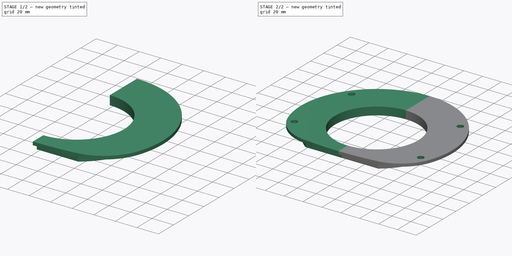
[diagram: build sequence overview — one tinted view per stage of 2, left to right]
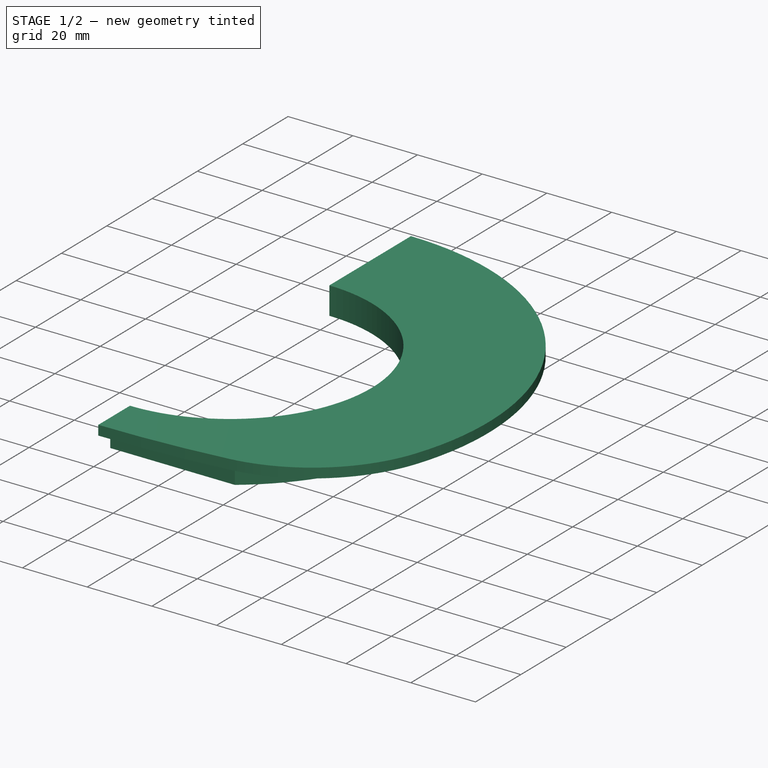
[diagram: stage 1 of 2 — iso view after this stage's code; geometry added in this stage tinted green]
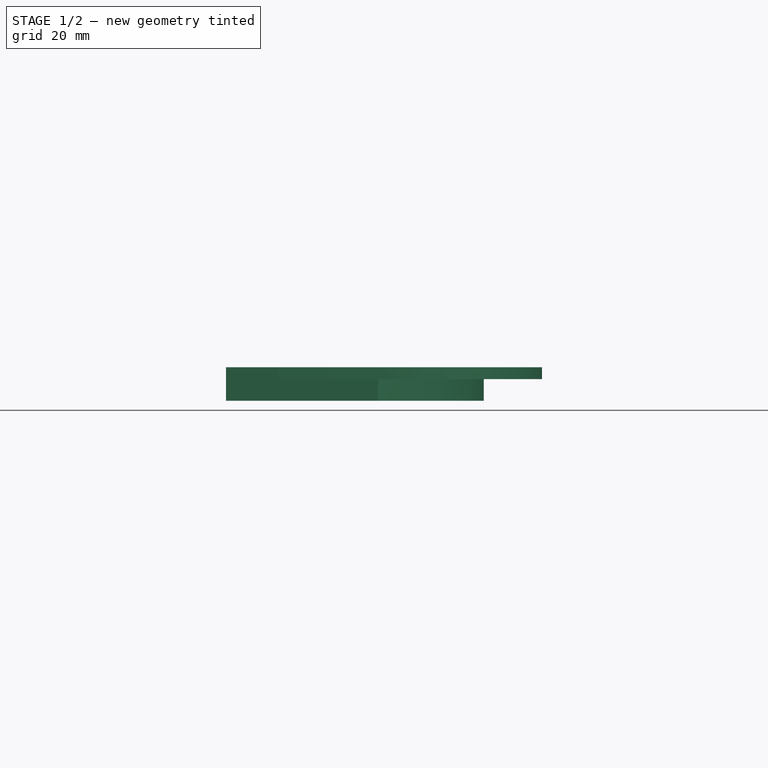
[diagram: stage 1 of 2 — front view after this stage's code; geometry added in this stage tinted green]
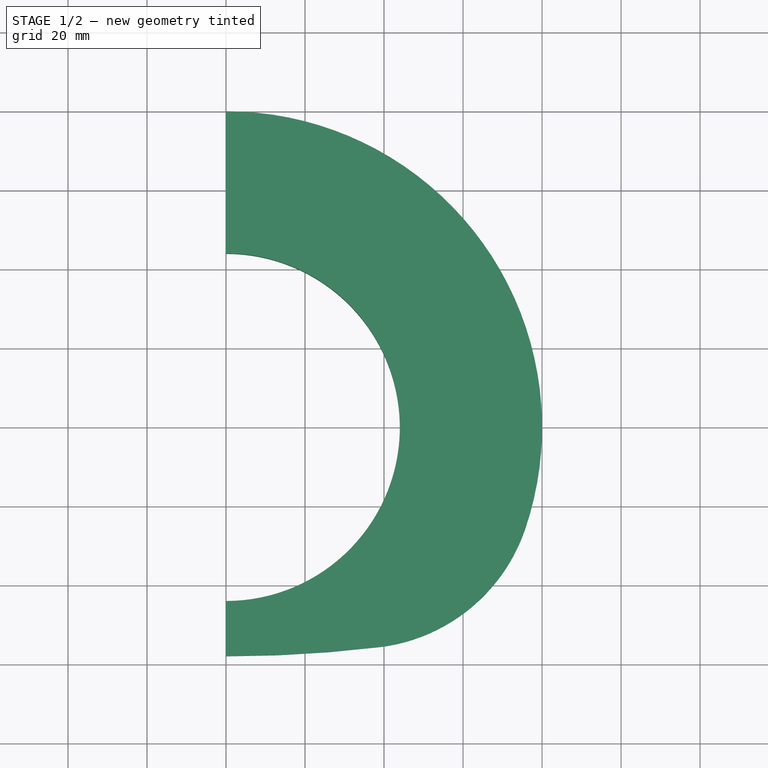
[diagram: stage 1 of 2 — top view after this stage's code; geometry added in this stage tinted green]
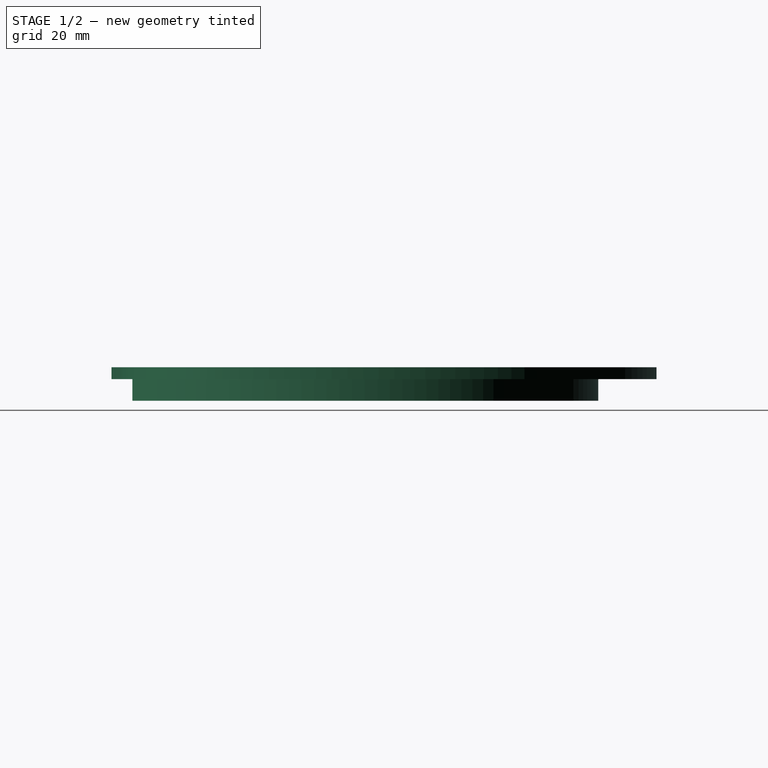
[diagram: stage 1 of 2 — right view after this stage's code; geometry added in this stage tinted green]
FCSTD DOCUMENT  (FreeCAD 0.19R24291 (Git))
Label: Посадочное место
License: All rights reserved
LicenseURL: http://en.wikipedia.org/wiki/All_rights_reserved
objects: Sketcher::SketchObject×3, PartDesign::Pad×2, PartDesign::Mirrored×1, PartDesign::Pocket×1, PartDesign::Body×1
note: 11 computed .brp shape members not serialized (recipe doc carries the construction recipe); baked Part::Feature solids carry a one-line shape summary decoded from their .brp

FEATURE [Sketcher::SketchObject] Sketch
  FullyConstrained = true
  MapMode = 5
  Support = -> [XY_Plane]
  sketch-geometry (9):
    g0: ArcOfCircle CenterX=0 CenterY=0 CenterZ=0 NormalX=0 NormalY=0 NormalZ=1 AngleXU=0 Radius=44 StartAngle=4.71239 EndAngle=7.85398
    g1: ArcOfCircle CenterX=0 CenterY=268.397 CenterZ=0 NormalX=0 NormalY=0 NormalZ=1 AngleXU=0 Radius=326.378 StartAngle=4.71239 EndAngle=4.83173
    g2: ArcOfCircle CenterX=0 CenterY=0 CenterZ=0 NormalX=0 NormalY=0 NormalZ=1 AngleXU=0 Radius=80 StartAngle=5.95515 EndAngle=7.85398
    g3: LineSegment StartX=2.45e-14 StartY=80 StartZ=0 EndX=1.35e-14 EndY=44 EndZ=0
    g4: LineSegment StartX=0 StartY=-57.9812 StartZ=0 EndX=-8.1e-15 EndY=-44 EndZ=0
    g5: ArcOfCircle CenterX=0 CenterY=0 CenterZ=0 NormalX=0 NormalY=0 NormalZ=1 AngleXU=0 Radius=65.25 StartAngle=5.3435 EndAngle=7.85398
    g6: LineSegment StartX=38.5 StartY=-52.6812 StartZ=0 EndX=0 EndY=-52.6812 EndZ=0
    g7: LineSegment StartX=38.5 StartY=-52.6812 StartZ=0 EndX=38.8572 EndY=-55.6599 EndZ=0
    g8: ArcOfCircle CenterX=33.5523 CenterY=-11.4191 CenterZ=0 NormalX=0 NormalY=0 NormalZ=1 AngleXU=0 Radius=44.5578 StartAngle=4.83173 EndAngle=5.95515
  constraints (29):
    c: Coincident(g0,g-1)
    c: PointOnObject(g0,g-2)
    c: PointOnObject(g0,g-2)
    c: Diameter(g0) = 88
    c: PointOnObject(g1,g-2)
    c: PointOnObject(g1,g-2)
    c: Coincident(g2,g0)
    c: PointOnObject(g2,g-2)
    c: Diameter(g2) = 160
    c: Coincident(g3,g2)
    c: Coincident(g3,g0)
    c: Coincident(g4,g1)
    c: Coincident(g4,g0)
    c: Coincident(g5,g0)
    c: PointOnObject(g5,g3)
    c: Diameter(g5) = 130.5
    c: Coincident(g6,g5)
    c: PointOnObject(g6,g4)
    c: Horizontal(g6)
    c: Distance(g6) = 38.5
    c: Distance(g1,g5) = 3
    c: Coincident(g7,g5)
    c: Coincident(g7,g1)
    c: Perpendicular(g1,g7)
    c: Coincident(g8,g1)
    c: Coincident(g8,g2)
    c: Tangent(g1,g8)
    c: Tangent(g8,g2)
    c: Distance(g1,g6) = 5.3
FEATURE [PartDesign::Pad] Pad
  Direction = (1,1,1)
  Length = 3
  Length2 = 100
  Profile = -> Sketch
  Type = 0
FEATURE [Sketcher::SketchObject] Sketch001
  ExternalGeometry = -> [Pad]
  FullyConstrained = true
  MapMode = 5
  Placement = pos=(0,0,0) rot=(1,0,0;3.14159rad)
  Support = -> [Pad]
  sketch-geometry (5):
    g0: ArcOfCircle CenterX=0 CenterY=0 CenterZ=0 NormalX=0 NormalY=0 NormalZ=1 AngleXU=0 Radius=65.25 StartAngle=4.71239 EndAngle=7.22288
    g1: LineSegment StartX=38.5 StartY=52.6812 StartZ=0 EndX=0 EndY=52.6812 EndZ=0
    g2: ArcOfCircle CenterX=0 CenterY=0 CenterZ=0 NormalX=0 NormalY=0 NormalZ=1 AngleXU=0 Radius=44 StartAngle=4.71239 EndAngle=7.85398
    g3: LineSegment StartX=-2.56e-14 StartY=44 StartZ=0 EndX=0 EndY=52.6812 EndZ=0
    g4: LineSegment StartX=3.1e-14 StartY=-44 StartZ=0 EndX=-1.2e-14 EndY=-65.25 EndZ=0
  constraints (14):
    c: Coincident(g0,g-1)
    c: PointOnObject(g0,g-2)
    c: Coincident(g1,g0)
    c: PointOnObject(g1,g-2)
    c: Horizontal(g1)
    c: Coincident(g2,g0)
    c: Coincident(g2,g-3)
    c: Coincident(g2,g-3)
    c: Coincident(g3,g2)
    c: Coincident(g3,g1)
    c: Coincident(g4,g2)
    c: Coincident(g4,g0)
    c: Diameter(g0) = 130.5
    c: Distance(g1) = 38.5
FEATURE [PartDesign::Pad] Pad001
  BaseFeature = -> Pad
  Direction = (1,1,1)
  Length = 5.5
  Length2 = 100
  Profile = -> Sketch001
  Type = 0
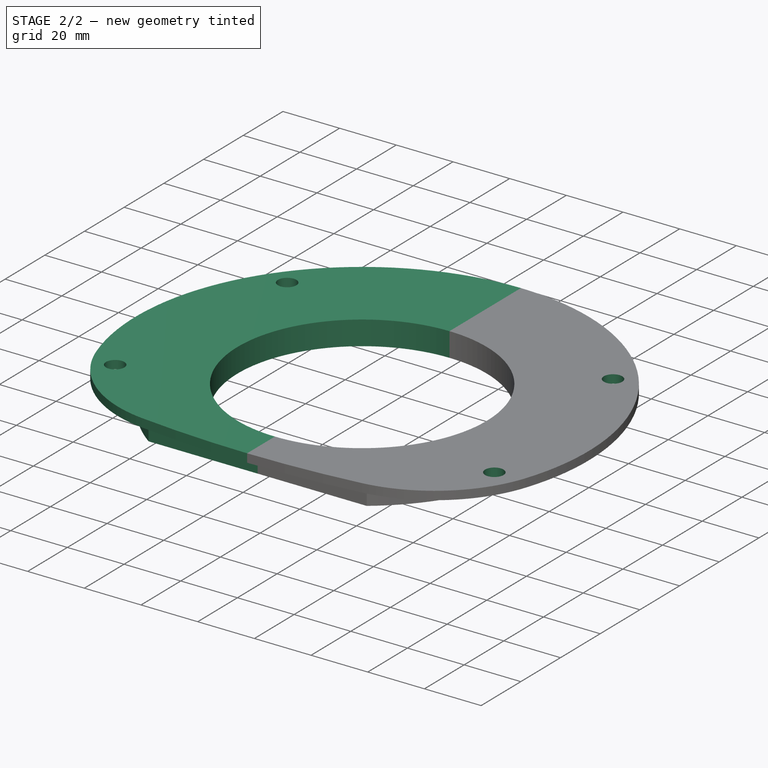
[diagram: stage 2 of 2 — iso view after this stage's code; geometry added in this stage tinted green]
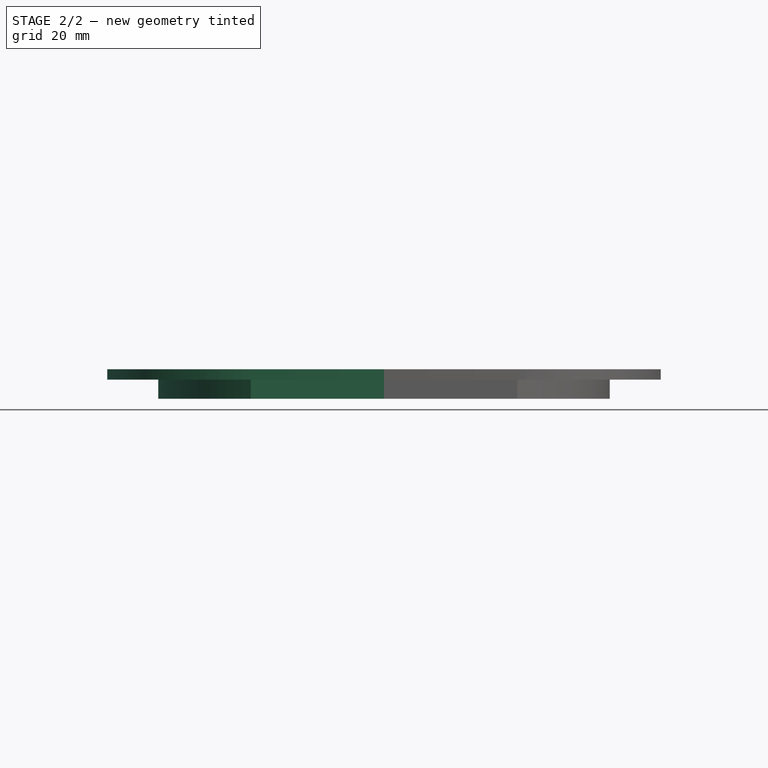
[diagram: stage 2 of 2 — front view after this stage's code; geometry added in this stage tinted green]
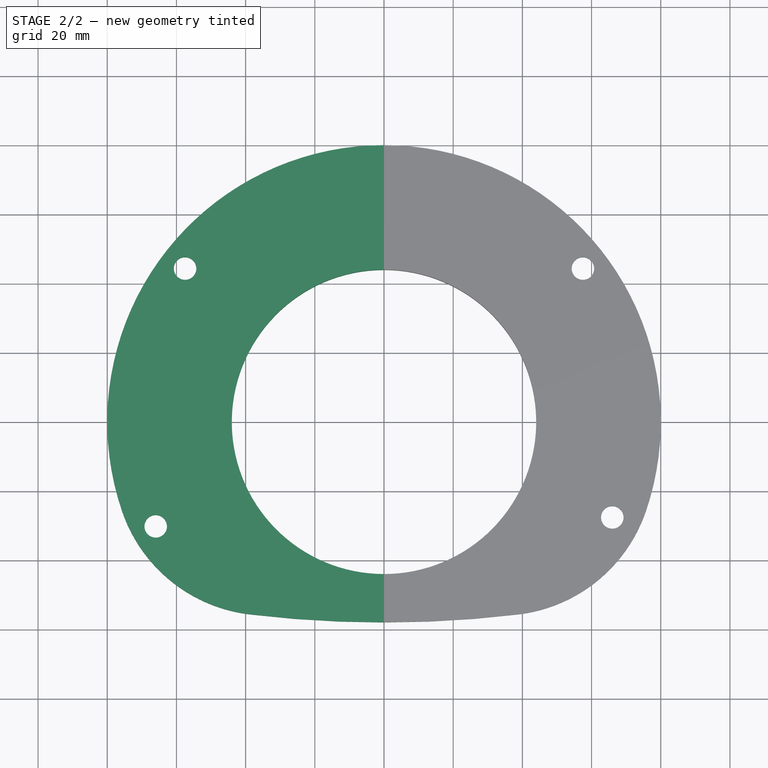
[diagram: stage 2 of 2 — top view after this stage's code; geometry added in this stage tinted green]
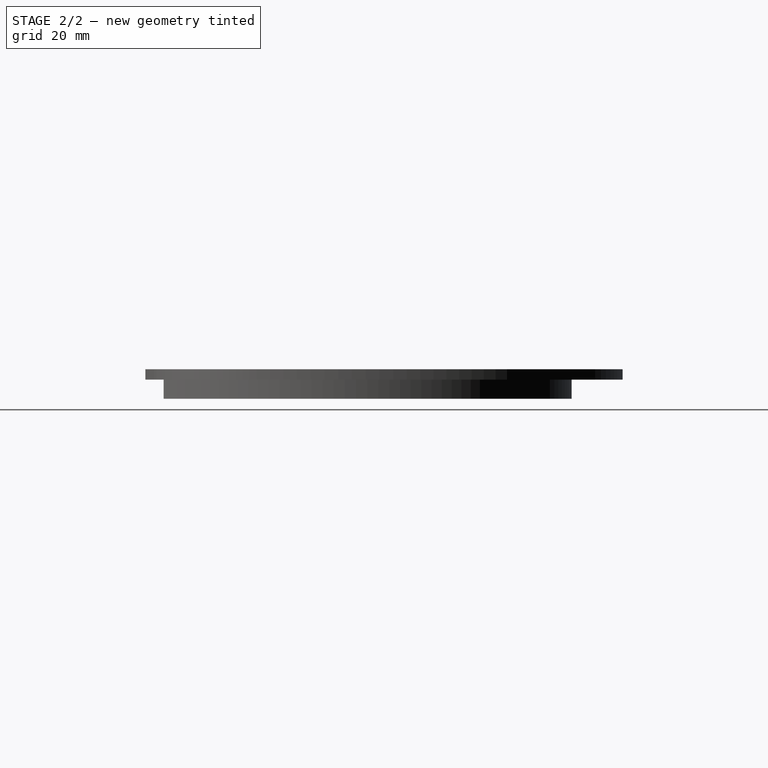
[diagram: stage 2 of 2 — right view after this stage's code; geometry added in this stage tinted green]
FEATURE [PartDesign::Mirrored] Mirrored
  BaseFeature = -> Pad001
  MirrorPlane = -> Sketch [V_Axis]
  Originals = -> [Pad,Pad001]
FEATURE [Sketcher::SketchObject] Sketch002
  ExternalGeometry = -> [Mirrored]
  FullyConstrained = true
  MapMode = 5
  Placement = pos=(0,0,0) rot=(1,0,0;3.14159rad)
  Support = -> [Mirrored]
  sketch-geometry (8):
    g0: Circle CenterX=65.9873 CenterY=27.6281 CenterZ=0 NormalX=0 NormalY=0 NormalZ=1 AngleXU=0 Radius=3.25
    g1: Circle CenterX=57.5 CenterY=-44.3188 CenterZ=0 NormalX=0 NormalY=0 NormalZ=1 AngleXU=0 Radius=3.25
    g2: Circle CenterX=-57.5 CenterY=-44.3188 CenterZ=0 NormalX=0 NormalY=0 NormalZ=1 AngleXU=0 Radius=3.25
    g3: Circle CenterX=-65.9873 CenterY=30.2158 CenterZ=0 NormalX=0 NormalY=0 NormalZ=1 AngleXU=0 Radius=3.25
    g4: LineSegment StartX=-65.9873 StartY=30.2158 StartZ=0 EndX=0 EndY=28.9219 EndZ=0
    g5: LineSegment StartX=0 StartY=28.9219 StartZ=0 EndX=65.9873 EndY=27.6281 EndZ=0
    g6: LineSegment StartX=-57.5 StartY=-44.3188 StartZ=0 EndX=0 EndY=-44.3188 EndZ=0
    g7: LineSegment StartX=0 StartY=-44.3188 StartZ=0 EndX=57.5 EndY=-44.3188 EndZ=0
  constraints (22):
    c: Coincident(g4,g3)
    c: Coincident(g5,g4)
    c: Coincident(g5,g0)
    c: Coincident(g6,g2)
    c: Coincident(g7,g6)
    c: Coincident(g7,g1)
    c: Parallel(g7,g6)
    c: Parallel(g4,g5)
    c: Distance(g-3,g4) = 23
    c: Distance(g-3,g6) = 97
    c: Equal(g2,g3)
    c: Equal(g3,g0)
    c: Equal(g0,g1)
    c: Diameter(g1) = 6.5
    c: Equal(g5,g4)
    c: Equal(g6,g7)
    c: Distance(g0,g3) = 132
    c: Distance(g1,g2) = 115
    c: Distance(g-3,g3) = 35.5
    c: PointOnObject(g4,g-2)
    c: PointOnObject(g6,g-2)
    c: Horizontal(g7)
FEATURE [PartDesign::Pocket] Pocket
  BaseFeature = -> Mirrored
  Length = 5
  Length2 = 100
  Profile = -> Sketch002
  Type = 0
FEATURE [PartDesign::Body] Body
  Group = -> [Sketch,Pad,Sketch001,Pad001,Mirrored,Sketch002,Pocket]
  Origin = -> Origin
  Tip = -> Pocket
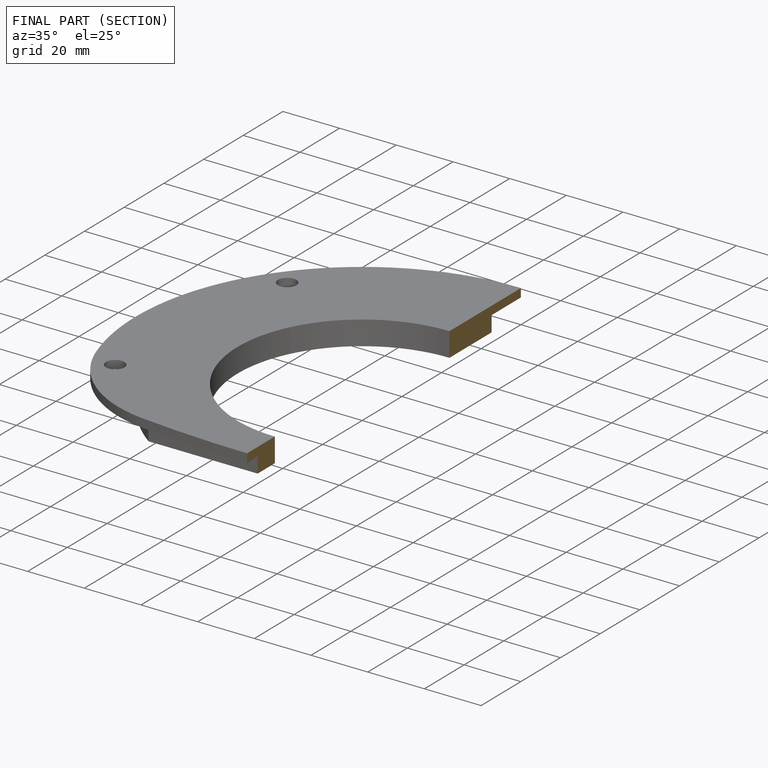
[diagram: finished part — half-section view (interior)]
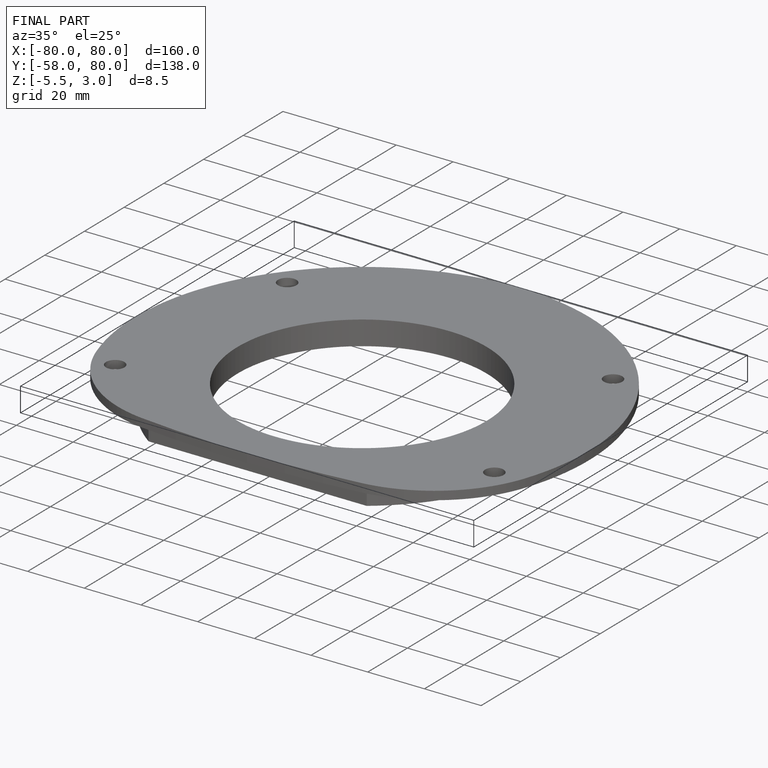
[diagram: finished part — iso view with bounding-box wireframe]
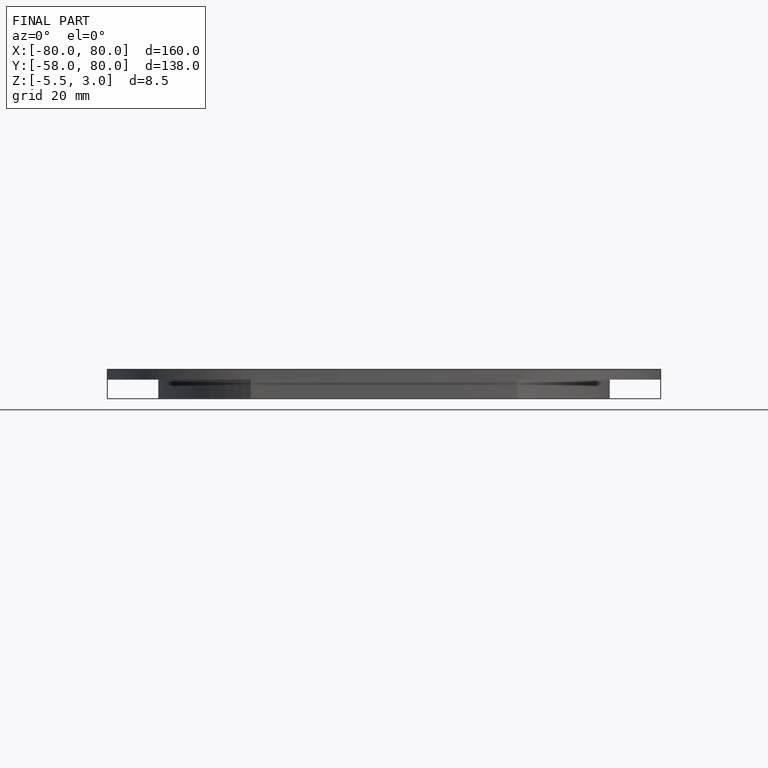
[diagram: finished part — front view with bounding-box wireframe]
